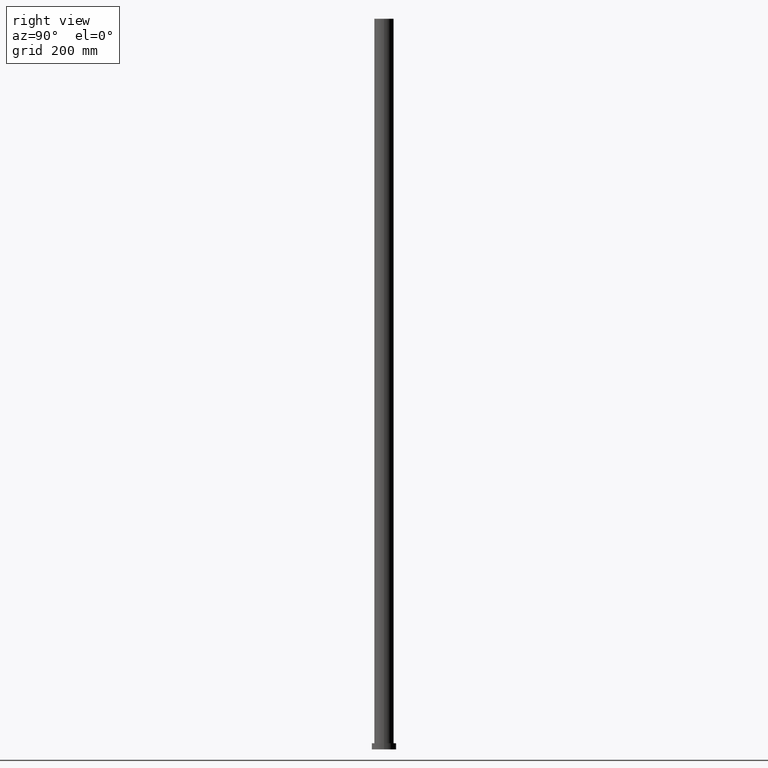
[diagram: clean part render]
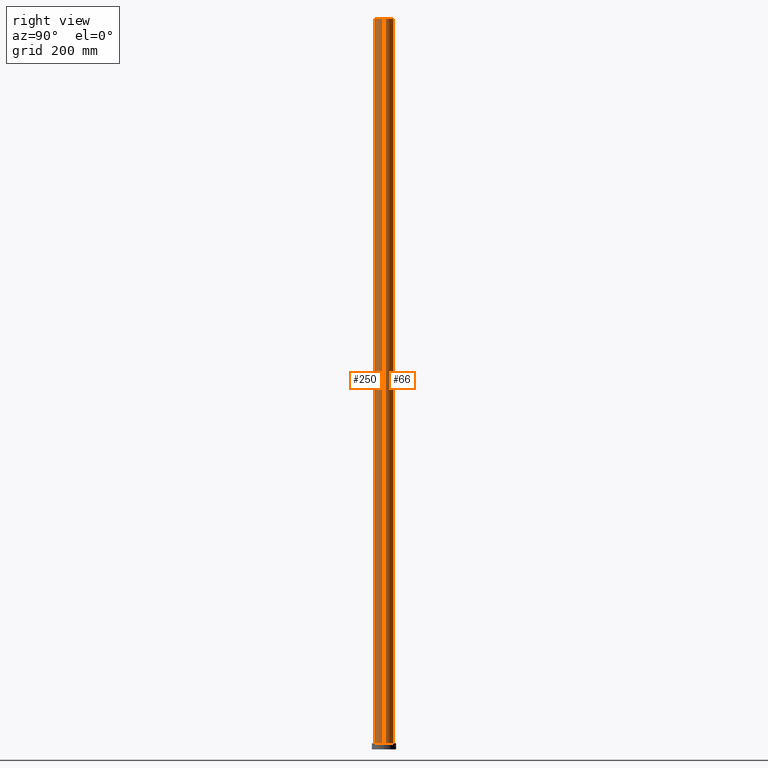
[diagram: same view with one multi-face feature highlighted, each face labeled with its STEP entity id]
A machine part, right view. The highlighted faces form ONE feature: a constant-radius fillet chain: 2 tangent blend faces with common blend radius 16 mm. The faces share edges in the B-rep.
Their STEP definitions:
[1] entity #66 (Cylinder):
#2 = DIRECTION ( 'NONE',  ( -0.000000000000000000, -0.000000000000000000, -1.000000000000000000 ) ) ;
#6 = CARTESIAN_POINT ( 'NONE',  ( -16.00000000000000000, 0.000000000000000000, 1200.000000000000000 ) ) ;
#8 = DIRECTION ( 'NONE',  ( -0.000000000000000000, -0.000000000000000000, -1.000000000000000000 ) ) ;
#27 = VERTEX_POINT ( 'NONE', #114 ) ;
#31 = FACE_OUTER_BOUND ( 'NONE', #83, .T. ) ;
#44 = DIRECTION ( 'NONE',  ( 1.000000000000000000, 0.000000000000000000, 0.000000000000000000 ) ) ;
#49 = VERTEX_POINT ( 'NONE', #85 ) ;
#52 = DIRECTION ( 'NONE',  ( 0.000000000000000000, 0.000000000000000000, 1.000000000000000000 ) ) ;
#61 = EDGE_CURVE ( 'NONE', #91, #181, #210, .T. ) ;
#66 = ADVANCED_FACE ( 'NONE', ( #31 ), #74, .T. ) ;
#70 = DIRECTION ( 'NONE',  ( -0.000000000000000000, -0.000000000000000000, -1.000000000000000000 ) ) ;
#73 = EDGE_CURVE ( 'NONE', #49, #27, #241, .T. ) ;
#74 = CYLINDRICAL_SURFACE ( 'NONE', #226, 16.00000000000000000 ) ;
#80 = VECTOR ( 'NONE', #70, 1000.000000000000000 ) ;
#83 = EDGE_LOOP ( 'NONE', ( #139, #249, #254, #247 ) ) ;
#85 = CARTESIAN_POINT ( 'NONE',  ( 16.00000000000000000, 1.959434878635765131E-15, 1200.000000000000000 ) ) ;
#91 = VERTEX_POINT ( 'NONE', #6 ) ;
#96 = DIRECTION ( 'NONE',  ( 1.000000000000000000, 0.000000000000000000, 0.000000000000000000 ) ) ;
#107 = AXIS2_PLACEMENT_3D ( 'NONE', #132, #202, #96 ) ;
#109 = CARTESIAN_POINT ( 'NONE',  ( 0.000000000000000000, 0.000000000000000000, 1200.000000000000000 ) ) ;
#114 = CARTESIAN_POINT ( 'NONE',  ( 16.00000000000000000, 1.959434878635765131E-15, 10.00000000000000000 ) ) ;
#132 = CARTESIAN_POINT ( 'NONE',  ( 0.000000000000000000, 0.000000000000000000, 10.00000000000000000 ) ) ;
#139 = ORIENTED_EDGE ( 'NONE', *, *, #151, .F. ) ;
#151 = EDGE_CURVE ( 'NONE', #49, #91, #251, .T. ) ;
#154 = CARTESIAN_POINT ( 'NONE',  ( 16.00000000000000000, 1.959434878635765131E-15, 1200.000000000000000 ) ) ;
#160 = AXIS2_PLACEMENT_3D ( 'NONE', #109, #52, #44 ) ;
#165 = EDGE_CURVE ( 'NONE', #27, #181, #232, .T. ) ;
#175 = CARTESIAN_POINT ( 'NONE',  ( -16.00000000000000000, 0.000000000000000000, 1200.000000000000000 ) ) ;
#177 = CARTESIAN_POINT ( 'NONE',  ( 0.000000000000000000, 0.000000000000000000, 1200.000000000000000 ) ) ;
#181 = VERTEX_POINT ( 'NONE', #244 ) ;
#197 = VECTOR ( 'NONE', #8, 1000.000000000000000 ) ;
#202 = DIRECTION ( 'NONE',  ( 0.000000000000000000, 0.000000000000000000, 1.000000000000000000 ) ) ;
#210 = LINE ( 'NONE', #175, #197 ) ;
#226 = AXIS2_PLACEMENT_3D ( 'NONE', #177, #2, #228 ) ;
#228 = DIRECTION ( 'NONE',  ( -1.000000000000000000, 0.000000000000000000, 0.000000000000000000 ) ) ;
#232 = CIRCLE ( 'NONE', #107, 16.00000000000000000 ) ;
#241 = LINE ( 'NONE', #154, #80 ) ;
#244 = CARTESIAN_POINT ( 'NONE',  ( -16.00000000000000000, 0.000000000000000000, 10.00000000000000000 ) ) ;
#247 = ORIENTED_EDGE ( 'NONE', *, *, #61, .F. ) ;
#249 = ORIENTED_EDGE ( 'NONE', *, *, #73, .T. ) ;
#251 = CIRCLE ( 'NONE', #160, 16.00000000000000000 ) ;
#254 = ORIENTED_EDGE ( 'NONE', *, *, #165, .T. ) ;
[2] entity #250 (Cylinder):
#6 = CARTESIAN_POINT ( 'NONE',  ( -16.00000000000000000, 0.000000000000000000, 1200.000000000000000 ) ) ;
#8 = DIRECTION ( 'NONE',  ( -0.000000000000000000, -0.000000000000000000, -1.000000000000000000 ) ) ;
#15 = ORIENTED_EDGE ( 'NONE', *, *, #73, .F. ) ;
#20 = AXIS2_PLACEMENT_3D ( 'NONE', #173, #218, #134 ) ;
#27 = VERTEX_POINT ( 'NONE', #114 ) ;
#43 = CARTESIAN_POINT ( 'NONE',  ( 0.000000000000000000, 0.000000000000000000, 1200.000000000000000 ) ) ;
#45 = DIRECTION ( 'NONE',  ( -0.000000000000000000, -0.000000000000000000, -1.000000000000000000 ) ) ;
#49 = VERTEX_POINT ( 'NONE', #85 ) ;
#61 = EDGE_CURVE ( 'NONE', #91, #181, #210, .T. ) ;
#62 = AXIS2_PLACEMENT_3D ( 'NONE', #43, #45, #217 ) ;
#64 = FACE_OUTER_BOUND ( 'NONE', #157, .T. ) ;
#70 = DIRECTION ( 'NONE',  ( -0.000000000000000000, -0.000000000000000000, -1.000000000000000000 ) ) ;
#71 = DIRECTION ( 'NONE',  ( 0.000000000000000000, 0.000000000000000000, 1.000000000000000000 ) ) ;
#73 = EDGE_CURVE ( 'NONE', #49, #27, #241, .T. ) ;
#80 = VECTOR ( 'NONE', #70, 1000.000000000000000 ) ;
#85 = CARTESIAN_POINT ( 'NONE',  ( 16.00000000000000000, 1.959434878635765131E-15, 1200.000000000000000 ) ) ;
#91 = VERTEX_POINT ( 'NONE', #6 ) ;
#98 = CIRCLE ( 'NONE', #163, 16.00000000000000000 ) ;
#99 = EDGE_CURVE ( 'NONE', #181, #27, #153, .T. ) ;
#111 = ORIENTED_EDGE ( 'NONE', *, *, #61, .T. ) ;
#114 = CARTESIAN_POINT ( 'NONE',  ( 16.00000000000000000, 1.959434878635765131E-15, 10.00000000000000000 ) ) ;
#134 = DIRECTION ( 'NONE',  ( 1.000000000000000000, 0.000000000000000000, 0.000000000000000000 ) ) ;
#145 = EDGE_CURVE ( 'NONE', #91, #49, #98, .T. ) ;
#153 = CIRCLE ( 'NONE', #20, 16.00000000000000000 ) ;
#154 = CARTESIAN_POINT ( 'NONE',  ( 16.00000000000000000, 1.959434878635765131E-15, 1200.000000000000000 ) ) ;
#157 = EDGE_LOOP ( 'NONE', ( #15, #186, #111, #199 ) ) ;
#163 = AXIS2_PLACEMENT_3D ( 'NONE', #166, #71, #224 ) ;
#166 = CARTESIAN_POINT ( 'NONE',  ( 0.000000000000000000, 0.000000000000000000, 1200.000000000000000 ) ) ;
#173 = CARTESIAN_POINT ( 'NONE',  ( 0.000000000000000000, 0.000000000000000000, 10.00000000000000000 ) ) ;
#175 = CARTESIAN_POINT ( 'NONE',  ( -16.00000000000000000, 0.000000000000000000, 1200.000000000000000 ) ) ;
#181 = VERTEX_POINT ( 'NONE', #244 ) ;
#186 = ORIENTED_EDGE ( 'NONE', *, *, #145, .F. ) ;
#197 = VECTOR ( 'NONE', #8, 1000.000000000000000 ) ;
#199 = ORIENTED_EDGE ( 'NONE', *, *, #99, .T. ) ;
#210 = LINE ( 'NONE', #175, #197 ) ;
#217 = DIRECTION ( 'NONE',  ( -1.000000000000000000, 0.000000000000000000, 0.000000000000000000 ) ) ;
#218 = DIRECTION ( 'NONE',  ( 0.000000000000000000, 0.000000000000000000, 1.000000000000000000 ) ) ;
#224 = DIRECTION ( 'NONE',  ( 1.000000000000000000, 0.000000000000000000, 0.000000000000000000 ) ) ;
#241 = LINE ( 'NONE', #154, #80 ) ;
#244 = CARTESIAN_POINT ( 'NONE',  ( -16.00000000000000000, 0.000000000000000000, 10.00000000000000000 ) ) ;
#250 = ADVANCED_FACE ( 'NONE', ( #64 ), #253, .T. ) ;
#253 = CYLINDRICAL_SURFACE ( 'NONE', #62, 16.00000000000000000 ) ;